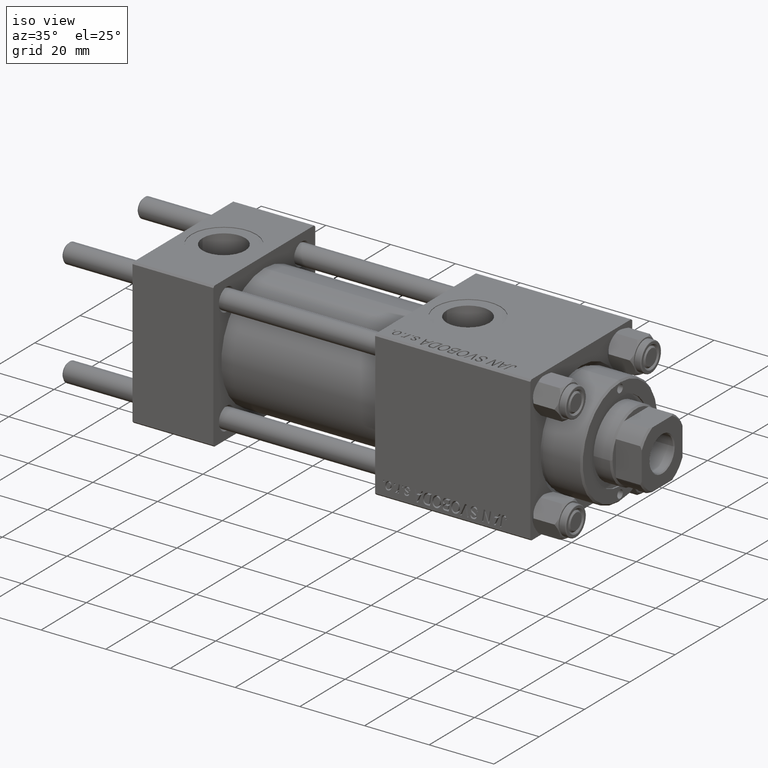
[diagram: clean part render]
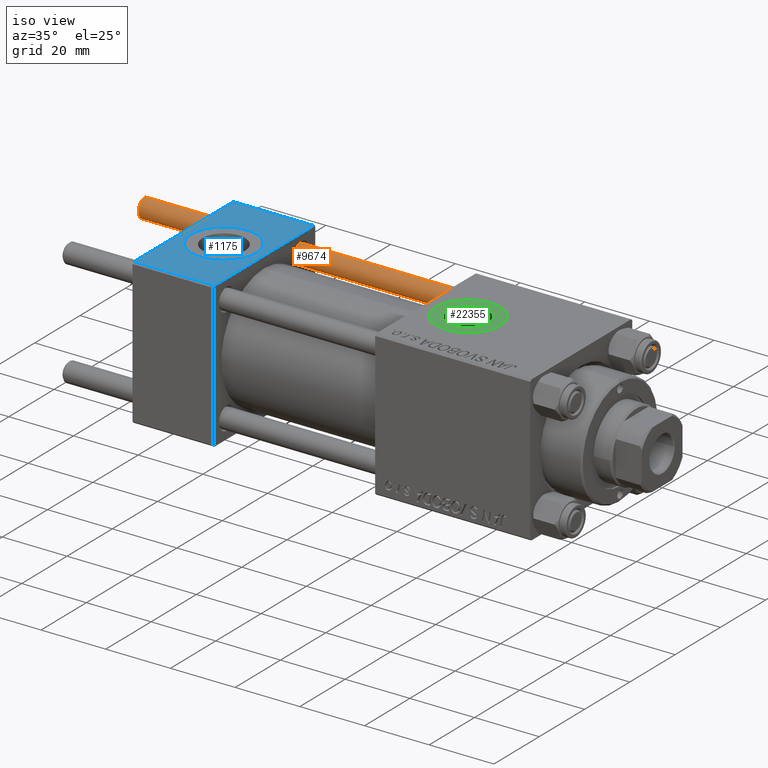
[diagram: same view with three faces highlighted in distinct colors, each labeled with its STEP entity id]
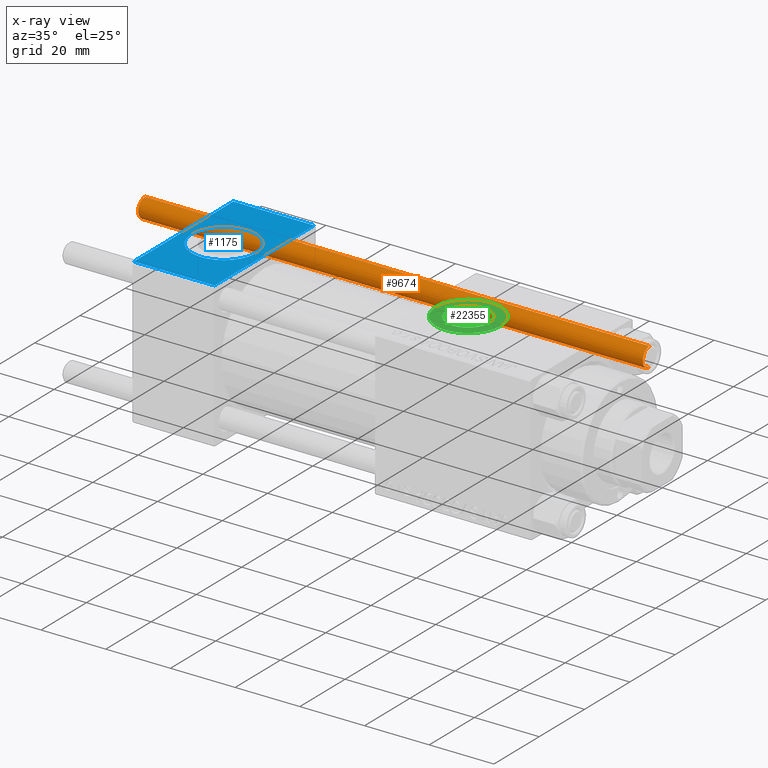
[diagram: x-ray of the same camera — body ghosted, the three highlighted faces saturated]
A machine part, iso view with three faces highlighted in distinct colors.
The next image is the same camera in x-ray (body ghosted, the three faces saturated) — at least one of them is partly hidden behind the body in this view.
Their STEP definitions:

[orange] entity #9674 — the highlighted cylindrical surface (edge-blend (fillet) strip) has radius 3 mm, axis along (-1, -0, -0).
#2583 = AXIS2_PLACEMENT_3D ( 'NONE', #49003, #31877, #8993 ) ;
#3523 = CARTESIAN_POINT ( 'NONE',  ( 3.000000000000000444, 3.673940397442060361E-16, 157.0000000000000000 ) ) ;
#4292 = VERTEX_POINT ( 'NONE', #47433 ) ;
#6679 = EDGE_CURVE ( 'NONE', #4292, #27499, #40119, .T. ) ;
#8993 = DIRECTION ( 'NONE',  ( 1.000000000000000000, 0.000000000000000000, 0.000000000000000000 ) ) ;
#9674 = ADVANCED_FACE ( 'NONE', ( #49037 ), #29008, .T. ) ;
#9785 = CARTESIAN_POINT ( 'NONE',  ( 0.000000000000000000, 0.000000000000000000, 157.0000000000000000 ) ) ;
#11453 = ORIENTED_EDGE ( 'NONE', *, *, #14252, .F. ) ;
#12048 = ORIENTED_EDGE ( 'NONE', *, *, #31584, .T. ) ;
#12381 = CARTESIAN_POINT ( 'NONE',  ( 0.000000000000000000, 0.000000000000000000, 0.4999999999999726885 ) ) ;
#12694 = CARTESIAN_POINT ( 'NONE',  ( 3.000000000000000444, 3.673940397442060361E-16, 0.4999999999999726885 ) ) ;
#13012 = CARTESIAN_POINT ( 'NONE',  ( -3.000000000000000444, 0.000000000000000000, 157.0000000000000000 ) ) ;
#13217 = DIRECTION ( 'NONE',  ( -1.000000000000000000, 0.000000000000000000, 0.000000000000000000 ) ) ;
#14252 = EDGE_CURVE ( 'NONE', #37541, #16167, #31152, .T. ) ;
#15865 = AXIS2_PLACEMENT_3D ( 'NONE', #9785, #45080, #13217 ) ;
#16167 = VERTEX_POINT ( 'NONE', #12694 ) ;
#21328 = EDGE_CURVE ( 'NONE', #27499, #16167, #36000, .T. ) ;
#24072 = VECTOR ( 'NONE', #32411, 1000.000000000000000 ) ;
#24481 = DIRECTION ( 'NONE',  ( -0.000000000000000000, -0.000000000000000000, 1.000000000000000000 ) ) ;
#27499 = VERTEX_POINT ( 'NONE', #48435 ) ;
#28441 = AXIS2_PLACEMENT_3D ( 'NONE', #12381, #24481, #44499 ) ;
#29008 = CYLINDRICAL_SURFACE ( 'NONE', #15865, 3.000000000000000444 ) ;
#31152 = LINE ( 'NONE', #3523, #24072 ) ;
#31584 = EDGE_CURVE ( 'NONE', #37541, #4292, #47159, .T. ) ;
#31877 = DIRECTION ( 'NONE',  ( 0.000000000000000000, 0.000000000000000000, -1.000000000000000000 ) ) ;
#32411 = DIRECTION ( 'NONE',  ( -0.000000000000000000, -0.000000000000000000, -1.000000000000000000 ) ) ;
#36000 = CIRCLE ( 'NONE', #28441, 3.000000000000000444 ) ;
#37541 = VERTEX_POINT ( 'NONE', #42040 ) ;
#38732 = EDGE_LOOP ( 'NONE', ( #11453, #12048, #45740, #51980 ) ) ;
#39391 = VECTOR ( 'NONE', #45124, 1000.000000000000000 ) ;
#40119 = LINE ( 'NONE', #13012, #39391 ) ;
#42040 = CARTESIAN_POINT ( 'NONE',  ( 3.000000000000000444, 3.673940397442060361E-16, 156.5000000000000284 ) ) ;
#44499 = DIRECTION ( 'NONE',  ( 1.000000000000000000, 0.000000000000000000, 0.000000000000000000 ) ) ;
#45080 = DIRECTION ( 'NONE',  ( -0.000000000000000000, -0.000000000000000000, -1.000000000000000000 ) ) ;
#45124 = DIRECTION ( 'NONE',  ( -0.000000000000000000, -0.000000000000000000, -1.000000000000000000 ) ) ;
#45740 = ORIENTED_EDGE ( 'NONE', *, *, #6679, .T. ) ;
#47159 = CIRCLE ( 'NONE', #2583, 3.000000000000000444 ) ;
#47433 = CARTESIAN_POINT ( 'NONE',  ( -3.000000000000000444, 0.000000000000000000, 156.5000000000000284 ) ) ;
#48435 = CARTESIAN_POINT ( 'NONE',  ( -3.000000000000000444, 0.000000000000000000, 0.4999999999999726885 ) ) ;
#49003 = CARTESIAN_POINT ( 'NONE',  ( 0.000000000000000000, 0.000000000000000000, 156.5000000000000284 ) ) ;
#49037 = FACE_OUTER_BOUND ( 'NONE', #38732, .T. ) ;
#51980 = ORIENTED_EDGE ( 'NONE', *, *, #21328, .T. ) ;

[blue] entity #1175 — the highlighted planar face has unit normal (0, 0, -1).
#947 = DIRECTION ( 'NONE',  ( 0.000000000000000000, -1.000000000000000000, -7.709882115452476934E-17 ) ) ;
#1175 = ADVANCED_FACE ( 'NONE', ( #35307, #15297 ), #22660, .F. ) ;
#1204 = CARTESIAN_POINT ( 'NONE',  ( 0.000000000000000000, 22.50000000000000000, 22.50000000000000355 ) ) ;
#1450 = LINE ( 'NONE', #1204, #16965 ) ;
#2345 = VECTOR ( 'NONE', #38950, 1000.000000000000000 ) ;
#3079 = DIRECTION ( 'NONE',  ( 0.000000000000000000, -1.000000000000000000, -7.709882115452476934E-17 ) ) ;
#4031 = AXIS2_PLACEMENT_3D ( 'NONE', #13926, #29978, #46063 ) ;
#4613 = EDGE_CURVE ( 'NONE', #20337, #37804, #42630, .T. ) ;
#4649 = DIRECTION ( 'NONE',  ( 0.000000000000000000, 0.000000000000000000, 1.000000000000000000 ) ) ;
#6583 = CARTESIAN_POINT ( 'NONE',  ( 0.000000000000000000, 21.99999999999999289, 22.50000000000000355 ) ) ;
#6729 = ORIENTED_EDGE ( 'NONE', *, *, #29907, .T. ) ;
#8336 = CARTESIAN_POINT ( 'NONE',  ( 12.50000000000000000, -1.734723475976807094E-15, 22.50000000000000000 ) ) ;
#9211 = VERTEX_POINT ( 'NONE', #51590 ) ;
#10711 = VECTOR ( 'NONE', #3079, 1000.000000000000000 ) ;
#10978 = LINE ( 'NONE', #39142, #10711 ) ;
#12620 = CARTESIAN_POINT ( 'NONE',  ( 22.50000000000000000, -1.734723475976807094E-15, 22.50000000000000000 ) ) ;
#13162 = AXIS2_PLACEMENT_3D ( 'NONE', #8336, #4649, #28847 ) ;
#13926 = CARTESIAN_POINT ( 'NONE',  ( 12.50000000000000000, -1.734723475976807094E-15, 22.50000000000000000 ) ) ;
#13948 = EDGE_CURVE ( 'NONE', #45209, #9211, #26592, .T. ) ;
#15297 = FACE_OUTER_BOUND ( 'NONE', #30593, .T. ) ;
#15592 = EDGE_CURVE ( 'NONE', #20337, #19554, #10978, .T. ) ;
#16029 = VERTEX_POINT ( 'NONE', #44597 ) ;
#16965 = VECTOR ( 'NONE', #947, 1000.000000000000000 ) ;
#18020 = EDGE_CURVE ( 'NONE', #9211, #45209, #26699, .T. ) ;
#19554 = VERTEX_POINT ( 'NONE', #43346 ) ;
#20337 = VERTEX_POINT ( 'NONE', #48428 ) ;
#22660 = PLANE ( 'NONE',  #40904 ) ;
#24099 = CARTESIAN_POINT ( 'NONE',  ( 0.000000000000000000, 21.99999999999999289, 22.50000000000000355 ) ) ;
#26592 = CIRCLE ( 'NONE', #13162, 9.999999999999998224 ) ;
#26699 = CIRCLE ( 'NONE', #4031, 9.999999999999998224 ) ;
#28847 = DIRECTION ( 'NONE',  ( 1.000000000000000000, 0.000000000000000000, 0.000000000000000000 ) ) ;
#29907 = EDGE_CURVE ( 'NONE', #16029, #19554, #39774, .T. ) ;
#29978 = DIRECTION ( 'NONE',  ( 0.000000000000000000, 0.000000000000000000, 1.000000000000000000 ) ) ;
#30173 = ORIENTED_EDGE ( 'NONE', *, *, #13948, .F. ) ;
#30369 = ORIENTED_EDGE ( 'NONE', *, *, #15592, .F. ) ;
#30426 = VECTOR ( 'NONE', #51615, 1000.000000000000000 ) ;
#30593 = EDGE_LOOP ( 'NONE', ( #46266, #6729, #30369, #35237 ) ) ;
#31603 = CARTESIAN_POINT ( 'NONE',  ( 25.00000000000000000, -21.99999999999999289, 22.50000000000000000 ) ) ;
#35237 = ORIENTED_EDGE ( 'NONE', *, *, #4613, .T. ) ;
#35307 = FACE_BOUND ( 'NONE', #38943, .T. ) ;
#37804 = VERTEX_POINT ( 'NONE', #24099 ) ;
#38733 = CARTESIAN_POINT ( 'NONE',  ( 25.00000000000000000, 22.50000000000000000, 22.50000000000000355 ) ) ;
#38943 = EDGE_LOOP ( 'NONE', ( #30173, #50742 ) ) ;
#38950 = DIRECTION ( 'NONE',  ( -1.000000000000000000, 0.000000000000000000, 0.000000000000000000 ) ) ;
#39142 = CARTESIAN_POINT ( 'NONE',  ( 25.00000000000000000, 22.50000000000000000, 22.50000000000000355 ) ) ;
#39774 = LINE ( 'NONE', #31603, #30426 ) ;
#40904 = AXIS2_PLACEMENT_3D ( 'NONE', #38733, #46645, #51085 ) ;
#42630 = LINE ( 'NONE', #6583, #2345 ) ;
#43346 = CARTESIAN_POINT ( 'NONE',  ( 25.00000000000000000, -21.99999999999997868, 22.50000000000000000 ) ) ;
#44597 = CARTESIAN_POINT ( 'NONE',  ( 0.000000000000000000, -21.99999999999997868, 22.50000000000000000 ) ) ;
#45209 = VERTEX_POINT ( 'NONE', #12620 ) ;
#46063 = DIRECTION ( 'NONE',  ( 1.000000000000000000, 0.000000000000000000, 0.000000000000000000 ) ) ;
#46266 = ORIENTED_EDGE ( 'NONE', *, *, #48775, .T. ) ;
#46645 = DIRECTION ( 'NONE',  ( 0.000000000000000000, 7.709882115452476934E-17, -1.000000000000000000 ) ) ;
#48428 = CARTESIAN_POINT ( 'NONE',  ( 25.00000000000000000, 21.99999999999999289, 22.50000000000000355 ) ) ;
#48775 = EDGE_CURVE ( 'NONE', #37804, #16029, #1450, .T. ) ;
#50742 = ORIENTED_EDGE ( 'NONE', *, *, #18020, .F. ) ;
#51085 = DIRECTION ( 'NONE',  ( 0.000000000000000000, 1.000000000000000000, 7.709882115452476934E-17 ) ) ;
#51590 = CARTESIAN_POINT ( 'NONE',  ( 2.500000000000003997, -5.100766768294543310E-16, 22.50000000000000000 ) ) ;
#51615 = DIRECTION ( 'NONE',  ( 1.000000000000000000, 0.000000000000000000, 0.000000000000000000 ) ) ;

[green] entity #22355 — the highlighted planar face has unit normal (0, 0, 1).
#2340 = CIRCLE ( 'NONE', #35227, 6.580000000000002736 ) ;
#2389 = CARTESIAN_POINT ( 'NONE',  ( 88.00000000000001421, -5.204170427930420494E-15, 22.29999999999999716 ) ) ;
#2450 = DIRECTION ( 'NONE',  ( -0.000000000000000000, -0.000000000000000000, -1.000000000000000000 ) ) ;
#5899 = VERTEX_POINT ( 'NONE', #33530 ) ;
#6306 = CARTESIAN_POINT ( 'NONE',  ( 78.00000000000000000, -3.979523628783065857E-15, 22.29999999999999716 ) ) ;
#6827 = CIRCLE ( 'NONE', #36306, 6.580000000000002736 ) ;
#7203 = EDGE_CURVE ( 'NONE', #31450, #5899, #2340, .T. ) ;
#8150 = ORIENTED_EDGE ( 'NONE', *, *, #7203, .T. ) ;
#9869 = DIRECTION ( 'NONE',  ( 0.000000000000000000, 0.000000000000000000, 1.000000000000000000 ) ) ;
#10338 = AXIS2_PLACEMENT_3D ( 'NONE', #38091, #41762, #50193 ) ;
#18127 = ORIENTED_EDGE ( 'NONE', *, *, #48467, .T. ) ;
#18744 = VERTEX_POINT ( 'NONE', #18811 ) ;
#18811 = CARTESIAN_POINT ( 'NONE',  ( 98.00000000000001421, -5.204170427930420494E-15, 22.29999999999999716 ) ) ;
#20938 = ORIENTED_EDGE ( 'NONE', *, *, #33195, .T. ) ;
#22184 = DIRECTION ( 'NONE',  ( 1.000000000000000000, 0.000000000000000000, 0.000000000000000000 ) ) ;
#22355 = ADVANCED_FACE ( 'NONE', ( #46067, #26039 ), #31544, .T. ) ;
#22589 = EDGE_LOOP ( 'NONE', ( #47297, #18127 ) ) ;
#23767 = CIRCLE ( 'NONE', #10338, 10.00000000000000888 ) ;
#26039 = FACE_OUTER_BOUND ( 'NONE', #22589, .T. ) ;
#27102 = DIRECTION ( 'NONE',  ( -0.000000000000000000, -0.000000000000000000, -1.000000000000000000 ) ) ;
#30334 = EDGE_CURVE ( 'NONE', #18744, #51649, #47234, .T. ) ;
#31049 = DIRECTION ( 'NONE',  ( 1.000000000000000000, 0.000000000000000000, 0.000000000000000000 ) ) ;
#31450 = VERTEX_POINT ( 'NONE', #47432 ) ;
#31544 = PLANE ( 'NONE',  #44459 ) ;
#33195 = EDGE_CURVE ( 'NONE', #5899, #31450, #6827, .T. ) ;
#33530 = CARTESIAN_POINT ( 'NONE',  ( 94.58000000000001251, -4.398352834091461452E-15, 22.29999999999999716 ) ) ;
#35227 = AXIS2_PLACEMENT_3D ( 'NONE', #2389, #27102, #31049 ) ;
#36306 = AXIS2_PLACEMENT_3D ( 'NONE', #39019, #2450, #22184 ) ;
#36807 = EDGE_LOOP ( 'NONE', ( #8150, #20938 ) ) ;
#37772 = DIRECTION ( 'NONE',  ( 1.000000000000000000, 0.000000000000000000, 0.000000000000000000 ) ) ;
#38091 = CARTESIAN_POINT ( 'NONE',  ( 88.00000000000001421, -5.204170427930420494E-15, 22.29999999999999716 ) ) ;
#39019 = CARTESIAN_POINT ( 'NONE',  ( 88.00000000000001421, -5.204170427930420494E-15, 22.29999999999999716 ) ) ;
#39717 = DIRECTION ( 'NONE',  ( 0.000000000000000000, 0.000000000000000000, 1.000000000000000000 ) ) ;
#41333 = AXIS2_PLACEMENT_3D ( 'NONE', #46201, #9869, #37772 ) ;
#41762 = DIRECTION ( 'NONE',  ( 0.000000000000000000, 0.000000000000000000, 1.000000000000000000 ) ) ;
#44459 = AXIS2_PLACEMENT_3D ( 'NONE', #51556, #39717, #47616 ) ;
#46067 = FACE_BOUND ( 'NONE', #36807, .T. ) ;
#46201 = CARTESIAN_POINT ( 'NONE',  ( 88.00000000000001421, -5.204170427930420494E-15, 22.29999999999999716 ) ) ;
#47234 = CIRCLE ( 'NONE', #41333, 10.00000000000000888 ) ;
#47297 = ORIENTED_EDGE ( 'NONE', *, *, #30334, .T. ) ;
#47432 = CARTESIAN_POINT ( 'NONE',  ( 81.42000000000000171, -5.204170427930420494E-15, 22.29999999999999716 ) ) ;
#47616 = DIRECTION ( 'NONE',  ( 1.000000000000000000, 0.000000000000000000, -0.000000000000000000 ) ) ;
#48467 = EDGE_CURVE ( 'NONE', #51649, #18744, #23767, .T. ) ;
#50193 = DIRECTION ( 'NONE',  ( 1.000000000000000000, 0.000000000000000000, 0.000000000000000000 ) ) ;
#51556 = CARTESIAN_POINT ( 'NONE',  ( 88.00000000000001421, -5.204170427930420494E-15, 22.29999999999999716 ) ) ;
#51649 = VERTEX_POINT ( 'NONE', #6306 ) ;